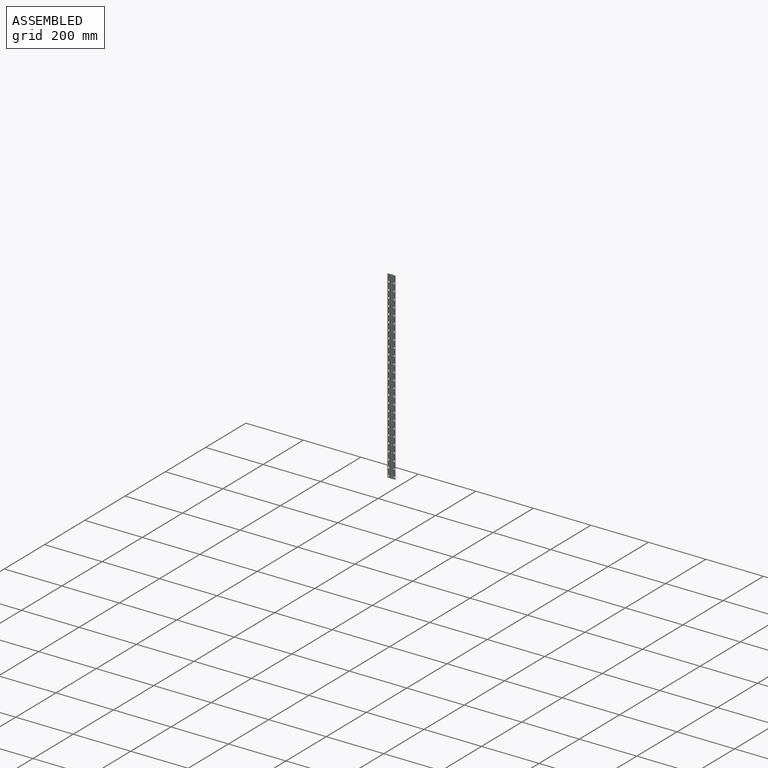
[diagram: assembled view]
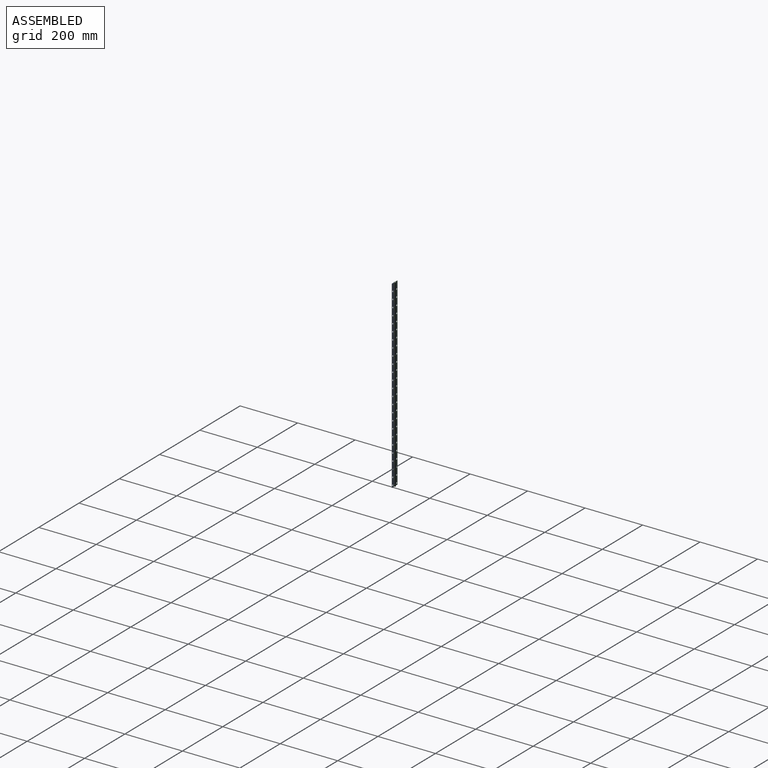
[diagram: assembled view, second angle]
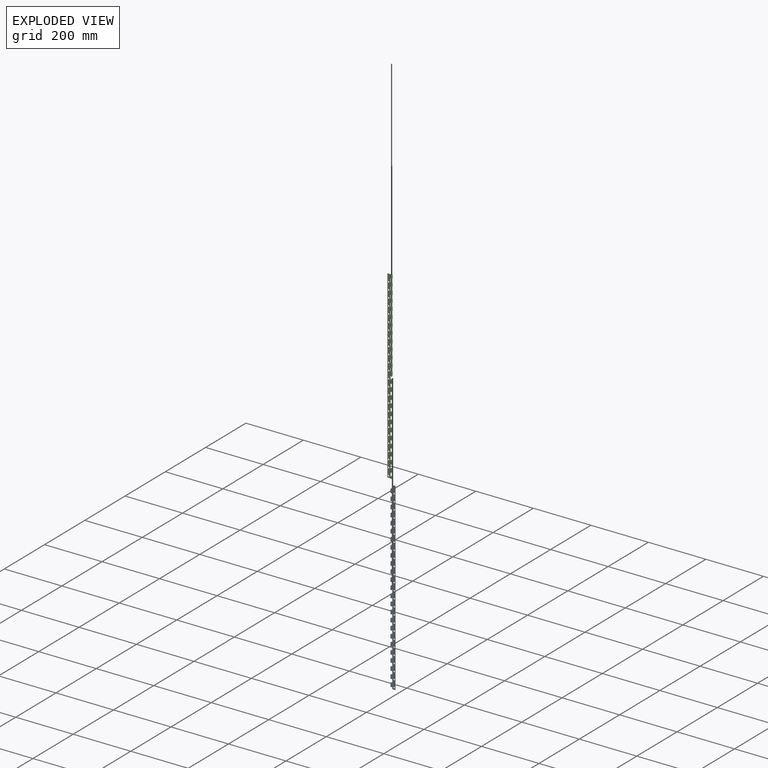
[diagram: exploded view]
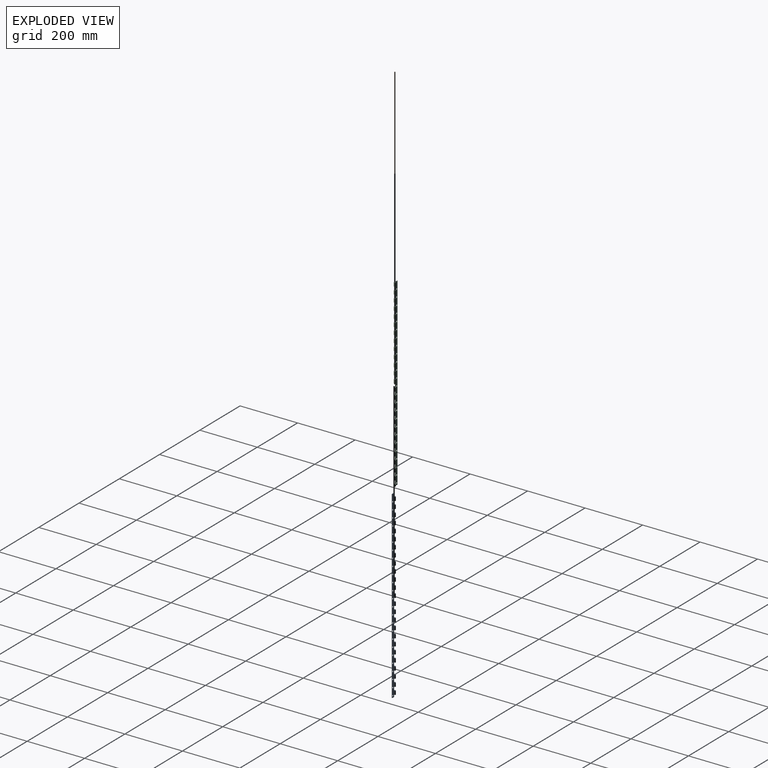
[diagram: exploded view, second angle]
ASSEMBLY  parts=3 mates=2
PART A: 183 faces, bbox 16.6x6.2x641.4 mm
  f0: cylinder r=7.94mm len=641.35mm, axis (0,0,1), area 2093.8mm2, adj f1,f5,f7,f10,f13,f16,f19,f22
  f1: plane 641.35x8.23mm, normal (0,1,0), area 4765.6mm2, adj f0,f2,f81,f157,f158,f159,f160,f161
  f2: plane 641.35x1.52mm, normal (1,0,0), area 977.4mm2, adj f1,f3,f81,f157
  f3: plane 641.35x8.23mm, normal (0,-1,0), area 4765.6mm2, adj f2,f4,f81,f157,f158,f159,f160,f161
  f4: cylinder r=6.41mm len=641.35mm, axis (0,0,1), area 1814.9mm2, adj f3,f5,f6,f9,f12,f15,f18,f21
  f5: plane 6.38x1.58mm, normal (-1,0,0), area 10.1mm2, adj f0,f4,f156,f157
  f6: cylinder r=3.11mm len=12.65mm, axis (0,0,1), area 208.5mm2, adj f4,f8,f153,f156
  f7: cylinder r=1.59mm len=12.65mm, axis (0,0,1), area 106.4mm2, adj f0,f8,f153,f156
  f8: plane 12.65x1.52mm, normal (0,-1,0), area 19.3mm2, adj f6,f7,f153,f156
  f9: cylinder r=3.11mm len=12.65mm, axis (0,0,1), area 208.5mm2, adj f4,f11,f150,f155
  f10: cylinder r=1.59mm len=12.65mm, axis (0,0,1), area 106.4mm2, adj f0,f11,f150,f155
  f11: plane 12.65x1.52mm, normal (0,-1,0), area 19.3mm2, adj f9,f10,f150,f155
  f12: cylinder r=3.11mm len=12.65mm, axis (0,0,1), area 208.5mm2, adj f4,f14,f147,f152
  f13: cylinder r=1.59mm len=12.65mm, axis (0,0,1), area 106.4mm2, adj f0,f14,f147,f152
  f14: plane 12.65x1.52mm, normal (0,-1,0), area 19.3mm2, adj f12,f13,f147,f152
  f15: cylinder r=3.11mm len=12.65mm, axis (0,0,1), area 208.5mm2, adj f4,f17,f144,f149
  f16: cylinder r=1.59mm len=12.65mm, axis (0,0,1), area 106.4mm2, adj f0,f17,f144,f149
  f17: plane 12.65x1.52mm, normal (0,-1,0), area 19.3mm2, adj f15,f16,f144,f149
  f18: cylinder r=3.11mm len=12.65mm, axis (0,0,1), area 208.5mm2, adj f4,f20,f141,f146
  f19: cylinder r=1.59mm len=12.65mm, axis (0,0,1), area 106.4mm2, adj f0,f20,f141,f146
  f20: plane 12.65x1.52mm, normal (0,-1,0), area 19.3mm2, adj f18,f19,f141,f146
  f21: cylinder r=3.11mm len=12.65mm, axis (0,0,1), area 208.5mm2, adj f4,f23,f138,f143
  f22: cylinder r=1.59mm len=12.65mm, axis (0,0,1), area 106.4mm2, adj f0,f23,f138,f143
  f23: plane 12.65x1.52mm, normal (0,-1,0), area 19.3mm2, adj f21,f22,f138,f143
  f24: cylinder r=3.11mm len=12.65mm, axis (0,0,1), area 208.5mm2, adj f4,f26,f135,f140
  f25: cylinder r=1.59mm len=12.65mm, axis (0,0,1), area 106.4mm2, adj f0,f26,f135,f140
  f26: plane 12.65x1.52mm, normal (0,-1,0), area 19.3mm2, adj f24,f25,f135,f140
  f27: cylinder r=3.11mm len=12.65mm, axis (0,0,1), area 208.5mm2, adj f4,f29,f132,f137
  f28: cylinder r=1.59mm len=12.65mm, axis (0,0,1), area 106.4mm2, adj f0,f29,f132,f137
  f29: plane 12.65x1.52mm, normal (0,-1,0), area 19.3mm2, adj f27,f28,f132,f137
  f30: cylinder r=3.11mm len=12.65mm, axis (0,0,1), area 208.5mm2, adj f4,f32,f129,f134
  f31: cylinder r=1.59mm len=12.65mm, axis (0,0,1), area 106.4mm2, adj f0,f32,f129,f134
  f32: plane 12.65x1.52mm, normal (0,-1,0), area 19.3mm2, adj f30,f31,f129,f134
  f33: cylinder r=3.11mm len=12.65mm, axis (0,0,1), area 208.5mm2, adj f4,f35,f126,f131
  f34: cylinder r=1.59mm len=12.65mm, axis (0,0,1), area 106.4mm2, adj f0,f35,f126,f131
  f35: plane 12.65x1.52mm, normal (0,-1,0), area 19.3mm2, adj f33,f34,f126,f131
  f36: cylinder r=3.11mm len=12.65mm, axis (0,0,1), area 208.5mm2, adj f4,f38,f123,f128
  f37: cylinder r=1.59mm len=12.65mm, axis (0,0,1), area 106.4mm2, adj f0,f38,f123,f128
  f38: plane 12.65x1.52mm, normal (0,-1,0), area 19.3mm2, adj f36,f37,f123,f128
  f39: cylinder r=3.11mm len=12.65mm, axis (0,0,1), area 208.5mm2, adj f4,f41,f120,f125
  f40: cylinder r=1.59mm len=12.65mm, axis (0,0,1), area 106.4mm2, adj f0,f41,f120,f125
  f41: plane 12.65x1.52mm, normal (0,-1,0), area 19.3mm2, adj f39,f40,f120,f125
  f42: cylinder r=3.11mm len=12.65mm, axis (0,0,1), area 208.5mm2, adj f4,f44,f117,f122
  f43: cylinder r=1.59mm len=12.65mm, axis (0,0,1), area 106.4mm2, adj f0,f44,f117,f122
  f44: plane 12.65x1.52mm, normal (0,-1,0), area 19.3mm2, adj f42,f43,f117,f122
  f45: cylinder r=3.11mm len=12.65mm, axis (0,0,1), area 208.5mm2, adj f4,f47,f114,f119
  f46: cylinder r=1.59mm len=12.65mm, axis (0,0,1), area 106.4mm2, adj f0,f47,f114,f119
  f47: plane 12.65x1.52mm, normal (0,-1,0), area 19.3mm2, adj f45,f46,f114,f119
  f48: cylinder r=3.11mm len=12.65mm, axis (0,0,1), area 208.5mm2, adj f4,f50,f111,f116
  f49: cylinder r=1.59mm len=12.65mm, axis (0,0,1), area 106.4mm2, adj f0,f50,f111,f116
  f50: plane 12.65x1.52mm, normal (0,-1,0), area 19.3mm2, adj f48,f49,f111,f116
  f51: cylinder r=3.11mm len=12.65mm, axis (0,0,1), area 208.5mm2, adj f4,f53,f108,f113
  f52: cylinder r=1.59mm len=12.65mm, axis (0,0,1), area 106.4mm2, adj f0,f53,f108,f113
  f53: plane 12.65x1.52mm, normal (0,-1,0), area 19.3mm2, adj f51,f52,f108,f113
  f54: cylinder r=3.11mm len=12.65mm, axis (0,0,1), area 208.5mm2, adj f4,f56,f105,f110
  f55: cylinder r=1.59mm len=12.65mm, axis (0,0,1), area 106.4mm2, adj f0,f56,f105,f110
  f56: plane 12.65x1.52mm, normal (0,-1,0), area 19.3mm2, adj f54,f55,f105,f110
  f57: cylinder r=3.11mm len=12.65mm, axis (0,0,1), area 208.5mm2, adj f4,f59,f102,f107
  f58: cylinder r=1.59mm len=12.65mm, axis (0,0,1), area 106.4mm2, adj f0,f59,f102,f107
  f59: plane 12.65x1.52mm, normal (0,-1,0), area 19.3mm2, adj f57,f58,f102,f107
  f60: cylinder r=3.11mm len=12.65mm, axis (0,0,1), area 208.5mm2, adj f4,f62,f99,f104
  f61: cylinder r=1.59mm len=12.65mm, axis (0,0,1), area 106.4mm2, adj f0,f62,f99,f104
  f62: plane 12.65x1.52mm, normal (0,-1,0), area 19.3mm2, adj f60,f61,f99,f104
  f63: cylinder r=3.11mm len=12.65mm, axis (0,0,1), area 208.5mm2, adj f4,f65,f96,f101
  f64: cylinder r=1.59mm len=12.65mm, axis (0,0,1), area 106.4mm2, adj f0,f65,f96,f101
  f65: plane 12.65x1.52mm, normal (0,-1,0), area 19.3mm2, adj f63,f64,f96,f101
  f66: cylinder r=3.11mm len=12.65mm, axis (0,0,1), area 208.5mm2, adj f4,f68,f93,f98
  f67: cylinder r=1.59mm len=12.65mm, axis (0,0,1), area 106.4mm2, adj f0,f68,f93,f98
  f68: plane 12.65x1.52mm, normal (0,-1,0), area 19.3mm2, adj f66,f67,f93,f98
  f69: cylinder r=3.11mm len=12.65mm, axis (0,0,1), area 208.5mm2, adj f4,f71,f90,f95
  f70: cylinder r=1.59mm len=12.65mm, axis (0,0,1), area 106.4mm2, adj f0,f71,f90,f95
  f71: plane 12.65x1.52mm, normal (0,-1,0), area 19.3mm2, adj f69,f70,f90,f95
  f72: cylinder r=3.11mm len=12.65mm, axis (0,0,1), area 208.5mm2, adj f4,f74,f87,f92
  f73: cylinder r=1.59mm len=12.65mm, axis (0,0,1), area 106.4mm2, adj f0,f74,f87,f92
  f74: plane 12.65x1.52mm, normal (0,-1,0), area 19.3mm2, adj f72,f73,f87,f92
  f75: cylinder r=3.11mm len=12.65mm, axis (0,0,1), area 208.5mm2, adj f4,f77,f84,f89
  f76: cylinder r=1.59mm len=12.65mm, axis (0,0,1), area 106.4mm2, adj f0,f77,f84,f89
  f77: plane 12.65x1.52mm, normal (0,-1,0), area 19.3mm2, adj f75,f76,f84,f89
  f78: cylinder r=3.11mm len=12.65mm, axis (0,0,1), area 208.5mm2, adj f4,f80,f82,f86
  f79: cylinder r=1.59mm len=12.65mm, axis (0,0,1), area 106.4mm2, adj f0,f80,f82,f86
  f80: plane 12.65x1.52mm, normal (0,-1,0), area 19.3mm2, adj f78,f79,f82,f86
  f81: plane 10.13x1.81mm, normal (0,0,1), area 15.5mm2, adj f0,f1,f2,f3,f4,f83
  f82: plane 6.48x6.22mm, normal (0,0,1), area 22.4mm2, adj f0,f4,f78,f79,f80,f83
  f83: plane 12.73x1.58mm, normal (-1,0,0), area 20.1mm2, adj f0,f4,f81,f82
  f84: plane 6.48x6.22mm, normal (0,0,1), area 22.4mm2, adj f0,f4,f75,f76,f77,f85
  f85: plane 12.75x1.58mm, normal (-1,0,0), area 20.2mm2, adj f0,f4,f84,f86
  f86: plane 6.48x6.22mm, normal (0,0,-1), area 22.4mm2, adj f0,f4,f78,f79,f80,f85
  f87: plane 6.48x6.22mm, normal (0,0,1), area 22.4mm2, adj f0,f4,f72,f73,f74,f88
  f88: plane 12.75x1.58mm, normal (-1,0,0), area 20.2mm2, adj f0,f4,f87,f89
  f89: plane 6.48x6.22mm, normal (0,0,-1), area 22.4mm2, adj f0,f4,f75,f76,f77,f88
  f90: plane 6.48x6.22mm, normal (0,0,1), area 22.4mm2, adj f0,f4,f69,f70,f71,f91
  f91: plane 12.75x1.58mm, normal (-1,0,0), area 20.2mm2, adj f0,f4,f90,f92
  f92: plane 6.48x6.22mm, normal (0,0,-1), area 22.4mm2, adj f0,f4,f72,f73,f74,f91
  f93: plane 6.48x6.22mm, normal (0,0,1), area 22.4mm2, adj f0,f4,f66,f67,f68,f94
  f94: plane 12.75x1.58mm, normal (-1,0,0), area 20.2mm2, adj f0,f4,f93,f95
  f95: plane 6.48x6.22mm, normal (0,0,-1), area 22.4mm2, adj f0,f4,f69,f70,f71,f94
  f96: plane 6.48x6.22mm, normal (0,0,1), area 22.4mm2, adj f0,f4,f63,f64,f65,f97
  f97: plane 12.75x1.58mm, normal (-1,0,0), area 20.2mm2, adj f0,f4,f96,f98
  f98: plane 6.48x6.22mm, normal (0,0,-1), area 22.4mm2, adj f0,f4,f66,f67,f68,f97
  f99: plane 6.48x6.22mm, normal (0,0,1), area 22.4mm2, adj f0,f4,f60,f61,f62,f100
  f100: plane 12.75x1.58mm, normal (-1,0,0), area 20.2mm2, adj f0,f4,f99,f101
  f101: plane 6.48x6.22mm, normal (0,0,-1), area 22.4mm2, adj f0,f4,f63,f64,f65,f100
  f102: plane 6.48x6.22mm, normal (0,0,1), area 22.4mm2, adj f0,f4,f57,f58,f59,f103
  f103: plane 12.75x1.58mm, normal (-1,0,0), area 20.2mm2, adj f0,f4,f102,f104
  f104: plane 6.48x6.22mm, normal (0,0,-1), area 22.4mm2, adj f0,f4,f60,f61,f62,f103
  f105: plane 6.48x6.22mm, normal (0,0,1), area 22.4mm2, adj f0,f4,f54,f55,f56,f106
  f106: plane 12.75x1.58mm, normal (-1,0,0), area 20.2mm2, adj f0,f4,f105,f107
  f107: plane 6.48x6.22mm, normal (0,0,-1), area 22.4mm2, adj f0,f4,f57,f58,f59,f106
  f108: plane 6.48x6.22mm, normal (0,0,1), area 22.4mm2, adj f0,f4,f51,f52,f53,f109
  f109: plane 12.75x1.58mm, normal (-1,0,0), area 20.2mm2, adj f0,f4,f108,f110
  f110: plane 6.48x6.22mm, normal (0,0,-1), area 22.4mm2, adj f0,f4,f54,f55,f56,f109
  f111: plane 6.48x6.22mm, normal (0,0,1), area 22.4mm2, adj f0,f4,f48,f49,f50,f112
  f112: plane 12.75x1.58mm, normal (-1,0,0), area 20.2mm2, adj f0,f4,f111,f113
  f113: plane 6.48x6.22mm, normal (0,0,-1), area 22.4mm2, adj f0,f4,f51,f52,f53,f112
  f114: plane 6.48x6.22mm, normal (0,0,1), area 22.4mm2, adj f0,f4,f45,f46,f47,f115
  f115: plane 12.75x1.58mm, normal (-1,0,0), area 20.2mm2, adj f0,f4,f114,f116
  f116: plane 6.48x6.22mm, normal (0,0,-1), area 22.4mm2, adj f0,f4,f48,f49,f50,f115
  f117: plane 6.48x6.22mm, normal (0,0,1), area 22.4mm2, adj f0,f4,f42,f43,f44,f118
  f118: plane 12.75x1.58mm, normal (-1,0,0), area 20.2mm2, adj f0,f4,f117,f119
  f119: plane 6.48x6.22mm, normal (0,0,-1), area 22.4mm2, adj f0,f4,f45,f46,f47,f118
  f120: plane 6.48x6.22mm, normal (0,0,1), area 22.4mm2, adj f0,f4,f39,f40,f41,f121
  f121: plane 12.75x1.58mm, normal (-1,0,0), area 20.2mm2, adj f0,f4,f120,f122
  f122: plane 6.48x6.22mm, normal (0,0,-1), area 22.4mm2, adj f0,f4,f42,f43,f44,f121
  f123: plane 6.48x6.22mm, normal (0,0,1), area 22.4mm2, adj f0,f4,f36,f37,f38,f124
  f124: plane 12.75x1.58mm, normal (-1,0,0), area 20.2mm2, adj f0,f4,f123,f125
  f125: plane 6.48x6.22mm, normal (0,0,-1), area 22.4mm2, adj f0,f4,f39,f40,f41,f124
  f126: plane 6.48x6.22mm, normal (0,0,1), area 22.4mm2, adj f0,f4,f33,f34,f35,f127
  f127: plane 12.75x1.58mm, normal (-1,0,0), area 20.2mm2, adj f0,f4,f126,f128
  f128: plane 6.48x6.22mm, normal (0,0,-1), area 22.4mm2, adj f0,f4,f36,f37,f38,f127
  f129: plane 6.48x6.22mm, normal (0,0,1), area 22.4mm2, adj f0,f4,f30,f31,f32,f130
  f130: plane 12.75x1.58mm, normal (-1,0,0), area 20.2mm2, adj f0,f4,f129,f131
  f131: plane 6.48x6.22mm, normal (0,0,-1), area 22.4mm2, adj f0,f4,f33,f34,f35,f130
  f132: plane 6.48x6.22mm, normal (0,0,1), area 22.4mm2, adj f0,f4,f27,f28,f29,f133
  f133: plane 12.75x1.58mm, normal (-1,0,0), area 20.2mm2, adj f0,f4,f132,f134
  f134: plane 6.48x6.22mm, normal (0,0,-1), area 22.4mm2, adj f0,f4,f30,f31,f32,f133
  f135: plane 6.48x6.22mm, normal (0,0,1), area 22.4mm2, adj f0,f4,f24,f25,f26,f136
  f136: plane 12.75x1.58mm, normal (-1,0,0), area 20.2mm2, adj f0,f4,f135,f137
  f137: plane 6.48x6.22mm, normal (0,0,-1), area 22.4mm2, adj f0,f4,f27,f28,f29,f136
  f138: plane 6.48x6.22mm, normal (0,0,1), area 22.4mm2, adj f0,f4,f21,f22,f23,f139
  f139: plane 12.75x1.58mm, normal (-1,0,0), area 20.2mm2, adj f0,f4,f138,f140
  f140: plane 6.48x6.22mm, normal (0,0,-1), area 22.4mm2, adj f0,f4,f24,f25,f26,f139
  f141: plane 6.48x6.22mm, normal (0,0,1), area 22.4mm2, adj f0,f4,f18,f19,f20,f142
  f142: plane 12.75x1.58mm, normal (-1,0,0), area 20.2mm2, adj f0,f4,f141,f143
  f143: plane 6.48x6.22mm, normal (0,0,-1), area 22.4mm2, adj f0,f4,f21,f22,f23,f142
  f144: plane 6.48x6.22mm, normal (0,0,1), area 22.4mm2, adj f0,f4,f15,f16,f17,f145
  f145: plane 12.75x1.58mm, normal (-1,0,0), area 20.2mm2, adj f0,f4,f144,f146
  f146: plane 6.48x6.22mm, normal (0,0,-1), area 22.4mm2, adj f0,f4,f18,f19,f20,f145
  f147: plane 6.48x6.22mm, normal (0,0,1), area 22.4mm2, adj f0,f4,f12,f13,f14,f148
  f148: plane 12.75x1.58mm, normal (-1,0,0), area 20.2mm2, adj f0,f4,f147,f149
  f149: plane 6.48x6.22mm, normal (0,0,-1), area 22.4mm2, adj f0,f4,f15,f16,f17,f148
  f150: plane 6.48x6.22mm, normal (0,0,1), area 22.4mm2, adj f0,f4,f9,f10,f11,f151
  f151: plane 12.75x1.58mm, normal (-1,0,0), area 20.2mm2, adj f0,f4,f150,f152
  f152: plane 6.48x6.22mm, normal (0,0,-1), area 22.4mm2, adj f0,f4,f12,f13,f14,f151
  f153: plane 6.48x6.22mm, normal (0,0,1), area 22.4mm2, adj f0,f4,f6,f7,f8,f154
  f154: plane 12.75x1.58mm, normal (-1,0,0), area 20.2mm2, adj f0,f4,f153,f155
  f155: plane 6.48x6.22mm, normal (0,0,-1), area 22.4mm2, adj f0,f4,f9,f10,f11,f154
  f156: plane 6.48x6.22mm, normal (0,0,-1), area 22.4mm2, adj f0,f4,f5,f6,f7,f8
  f157: plane 10.13x1.81mm, normal (0,0,-1), area 15.5mm2, adj f0,f1,f2,f3,f4,f5
  f158: cylinder r=2.55mm len=5.11mm, axis (0,-1,0), area 24.4mm2, adj f1,f3
  f159: cylinder r=2.55mm len=5.11mm, axis (0,-1,0), area 24.4mm2, adj f1,f3
  f160: cylinder r=2.55mm len=5.11mm, axis (0,-1,0), area 24.4mm2, adj f1,f3
  f161: cylinder r=2.55mm len=5.11mm, axis (0,-1,0), area 24.4mm2, adj f1,f3
  f162: cylinder r=2.55mm len=5.11mm, axis (0,-1,0), area 24.4mm2, adj f1,f3
  f163: cylinder r=2.55mm len=5.11mm, axis (0,-1,0), area 24.4mm2, adj f1,f3
  f164: cylinder r=2.55mm len=5.11mm, axis (0,-1,0), area 24.4mm2, adj f1,f3
  f165: cylinder r=2.55mm len=5.11mm, axis (0,-1,0), area 24.4mm2, adj f1,f3
  f166: cylinder r=2.55mm len=5.11mm, axis (0,-1,0), area 24.4mm2, adj f1,f3
  f167: cylinder r=2.55mm len=5.11mm, axis (0,-1,0), area 24.4mm2, adj f1,f3
  f168: cylinder r=2.55mm len=5.11mm, axis (0,-1,0), area 24.4mm2, adj f1,f3
  f169: cylinder r=2.55mm len=5.11mm, axis (0,-1,0), area 24.4mm2, adj f1,f3
  f170: cylinder r=2.55mm len=5.11mm, axis (0,-1,0), area 24.4mm2, adj f1,f3
  f171: cylinder r=2.55mm len=5.11mm, axis (0,-1,0), area 24.4mm2, adj f1,f3
  f172: cylinder r=2.55mm len=5.11mm, axis (0,-1,0), area 24.4mm2, adj f1,f3
  f173: cylinder r=2.55mm len=5.11mm, axis (0,-1,0), area 24.4mm2, adj f1,f3
  f174: cylinder r=2.55mm len=5.11mm, axis (0,-1,0), area 24.4mm2, adj f1,f3
  f175: cylinder r=2.55mm len=5.11mm, axis (0,-1,0), area 24.4mm2, adj f1,f3
  f176: cylinder r=2.55mm len=5.11mm, axis (0,-1,0), area 24.4mm2, adj f1,f3
  f177: cylinder r=2.55mm len=5.11mm, axis (0,-1,0), area 24.4mm2, adj f1,f3
  f178: cylinder r=2.55mm len=5.11mm, axis (0,-1,0), area 24.4mm2, adj f1,f3
  f179: cylinder r=2.55mm len=5.11mm, axis (0,-1,0), area 24.4mm2, adj f1,f3
  f180: cylinder r=2.55mm len=5.11mm, axis (0,-1,0), area 24.4mm2, adj f1,f3
  f181: cylinder r=2.55mm len=5.11mm, axis (0,-1,0), area 24.4mm2, adj f1,f3
  f182: cylinder r=2.55mm len=5.11mm, axis (0,-1,0), area 24.4mm2, adj f1,f3
PART B: 3 faces, bbox 3.1x3.1x641.4 mm
  f0: cylinder r=1.54mm len=641.35mm, axis (0,0,1), area 6192.5mm2, adj f1,f2
  f1: plane 3.07x3.07mm, normal (0,0,1), area 7.4mm2, adj f0
  f2: plane 3.07x3.07mm, normal (0,0,-1), area 7.4mm2, adj f0
PART C: 185 faces, bbox 16.6x6.2x641.4 mm
  f0: cylinder r=3.11mm len=6.32mm, axis (0,0,1), area 104.3mm2, adj f2,f3,f158,f159
  f1: cylinder r=1.59mm len=6.32mm, axis (0,0,1), area 53.2mm2, adj f2,f7,f158,f159
  f2: plane 6.32x1.52mm, normal (0,-1,0), area 9.6mm2, adj f0,f1,f158,f159
  f3: cylinder r=6.41mm len=641.35mm, axis (0,0,1), area 1826.5mm2, adj f0,f4,f8,f10,f12,f14,f16,f18
  f4: plane 641.35x8.23mm, normal (0,-1,0), area 4765.6mm2, adj f3,f5,f83,f159,f160,f161,f162,f163
  f5: plane 641.35x1.52mm, normal (-1,0,0), area 977.4mm2, adj f4,f6,f83,f159
  f6: plane 641.35x8.23mm, normal (0,1,0), area 4765.6mm2, adj f5,f7,f83,f159,f160,f161,f162,f163
  f7: cylinder r=7.94mm len=641.35mm, axis (0,0,1), area 2111.1mm2, adj f1,f6,f9,f11,f13,f15,f17,f19
  f8: cylinder r=3.11mm len=12.67mm, axis (0,0,1), area 208.9mm2, adj f3,f82,f83,f84
  f9: cylinder r=1.59mm len=12.67mm, axis (0,0,1), area 106.6mm2, adj f7,f82,f83,f84
  f10: cylinder r=3.11mm len=12.65mm, axis (0,0,1), area 208.5mm2, adj f3,f81,f86,f87
  f11: cylinder r=1.59mm len=12.65mm, axis (0,0,1), area 106.4mm2, adj f7,f81,f86,f87
  f12: cylinder r=3.11mm len=12.65mm, axis (0,0,1), area 208.5mm2, adj f3,f80,f89,f90
  f13: cylinder r=1.59mm len=12.65mm, axis (0,0,1), area 106.4mm2, adj f7,f80,f89,f90
  f14: cylinder r=3.11mm len=12.65mm, axis (0,0,1), area 208.5mm2, adj f3,f79,f92,f93
  f15: cylinder r=1.59mm len=12.65mm, axis (0,0,1), area 106.4mm2, adj f7,f79,f92,f93
  f16: cylinder r=3.11mm len=12.65mm, axis (0,0,1), area 208.5mm2, adj f3,f78,f95,f96
  f17: cylinder r=1.59mm len=12.65mm, axis (0,0,1), area 106.4mm2, adj f7,f78,f95,f96
  f18: cylinder r=3.11mm len=12.65mm, axis (0,0,1), area 208.5mm2, adj f3,f77,f98,f99
  f19: cylinder r=1.59mm len=12.65mm, axis (0,0,1), area 106.4mm2, adj f7,f77,f98,f99
  f20: cylinder r=3.11mm len=12.65mm, axis (0,0,1), area 208.5mm2, adj f3,f76,f101,f102
  f21: cylinder r=1.59mm len=12.65mm, axis (0,0,1), area 106.4mm2, adj f7,f76,f101,f102
  f22: cylinder r=3.11mm len=12.65mm, axis (0,0,1), area 208.5mm2, adj f3,f75,f104,f105
  f23: cylinder r=1.59mm len=12.65mm, axis (0,0,1), area 106.4mm2, adj f7,f75,f104,f105
  f24: cylinder r=3.11mm len=12.65mm, axis (0,0,1), area 208.5mm2, adj f3,f74,f107,f108
  f25: cylinder r=1.59mm len=12.65mm, axis (0,0,1), area 106.4mm2, adj f7,f74,f107,f108
  f26: cylinder r=3.11mm len=12.65mm, axis (0,0,1), area 208.5mm2, adj f3,f73,f110,f111
  f27: cylinder r=1.59mm len=12.65mm, axis (0,0,1), area 106.4mm2, adj f7,f73,f110,f111
  f28: cylinder r=3.11mm len=12.65mm, axis (0,0,1), area 208.5mm2, adj f3,f72,f113,f114
  f29: cylinder r=1.59mm len=12.65mm, axis (0,0,1), area 106.4mm2, adj f7,f72,f113,f114
  f30: cylinder r=3.11mm len=12.65mm, axis (0,0,1), area 208.5mm2, adj f3,f71,f116,f117
  f31: cylinder r=1.59mm len=12.65mm, axis (0,0,1), area 106.4mm2, adj f7,f71,f116,f117
  f32: cylinder r=3.11mm len=12.65mm, axis (0,0,1), area 208.5mm2, adj f3,f70,f119,f120
  f33: cylinder r=1.59mm len=12.65mm, axis (0,0,1), area 106.4mm2, adj f7,f70,f119,f120
  f34: cylinder r=3.11mm len=12.65mm, axis (0,0,1), area 208.5mm2, adj f3,f69,f122,f123
  f35: cylinder r=1.59mm len=12.65mm, axis (0,0,1), area 106.4mm2, adj f7,f69,f122,f123
  f36: cylinder r=3.11mm len=12.65mm, axis (0,0,1), area 208.5mm2, adj f3,f68,f125,f126
  f37: cylinder r=1.59mm len=12.65mm, axis (0,0,1), area 106.4mm2, adj f7,f68,f125,f126
  f38: cylinder r=3.11mm len=12.65mm, axis (0,0,1), area 208.5mm2, adj f3,f67,f128,f129
  f39: cylinder r=1.59mm len=12.65mm, axis (0,0,1), area 106.4mm2, adj f7,f67,f128,f129
  f40: cylinder r=3.11mm len=12.65mm, axis (0,0,1), area 208.5mm2, adj f3,f66,f131,f132
  f41: cylinder r=1.59mm len=12.65mm, axis (0,0,1), area 106.4mm2, adj f7,f66,f131,f132
  f42: cylinder r=3.11mm len=12.65mm, axis (0,0,1), area 208.5mm2, adj f3,f65,f134,f135
  f43: cylinder r=1.59mm len=12.65mm, axis (0,0,1), area 106.4mm2, adj f7,f65,f134,f135
  f44: cylinder r=3.11mm len=12.65mm, axis (0,0,1), area 208.5mm2, adj f3,f64,f137,f138
  f45: cylinder r=1.59mm len=12.65mm, axis (0,0,1), area 106.4mm2, adj f7,f64,f137,f138
  f46: cylinder r=3.11mm len=12.65mm, axis (0,0,1), area 208.5mm2, adj f3,f63,f140,f141
  f47: cylinder r=1.59mm len=12.65mm, axis (0,0,1), area 106.4mm2, adj f7,f63,f140,f141
  f48: cylinder r=3.11mm len=12.65mm, axis (0,0,1), area 208.5mm2, adj f3,f62,f143,f144
  f49: cylinder r=1.59mm len=12.65mm, axis (0,0,1), area 106.4mm2, adj f7,f62,f143,f144
  f50: cylinder r=3.11mm len=12.65mm, axis (0,0,1), area 208.5mm2, adj f3,f61,f146,f147
  f51: cylinder r=1.59mm len=12.65mm, axis (0,0,1), area 106.4mm2, adj f7,f61,f146,f147
  f52: cylinder r=3.11mm len=12.65mm, axis (0,0,1), area 208.5mm2, adj f3,f60,f149,f150
  f53: cylinder r=1.59mm len=12.65mm, axis (0,0,1), area 106.4mm2, adj f7,f60,f149,f150
  f54: cylinder r=3.11mm len=12.65mm, axis (0,0,1), area 208.5mm2, adj f3,f59,f152,f153
  f55: cylinder r=1.59mm len=12.65mm, axis (0,0,1), area 106.4mm2, adj f7,f59,f152,f153
  f56: cylinder r=3.11mm len=12.65mm, axis (0,0,1), area 208.5mm2, adj f3,f58,f155,f156
  f57: cylinder r=1.59mm len=12.65mm, axis (0,0,1), area 106.4mm2, adj f7,f58,f155,f156
  f58: plane 12.65x1.52mm, normal (0,-1,0), area 19.3mm2, adj f56,f57,f155,f156
  f59: plane 12.65x1.52mm, normal (0,-1,0), area 19.3mm2, adj f54,f55,f152,f153
  f60: plane 12.65x1.52mm, normal (0,-1,0), area 19.3mm2, adj f52,f53,f149,f150
  f61: plane 12.65x1.52mm, normal (0,-1,0), area 19.3mm2, adj f50,f51,f146,f147
  f62: plane 12.65x1.52mm, normal (0,-1,0), area 19.3mm2, adj f48,f49,f143,f144
  f63: plane 12.65x1.52mm, normal (0,-1,0), area 19.3mm2, adj f46,f47,f140,f141
  f64: plane 12.65x1.52mm, normal (0,-1,0), area 19.3mm2, adj f44,f45,f137,f138
  f65: plane 12.65x1.52mm, normal (0,-1,0), area 19.3mm2, adj f42,f43,f134,f135
  f66: plane 12.65x1.52mm, normal (0,-1,0), area 19.3mm2, adj f40,f41,f131,f132
  f67: plane 12.65x1.52mm, normal (0,-1,0), area 19.3mm2, adj f38,f39,f128,f129
  f68: plane 12.65x1.52mm, normal (0,-1,0), area 19.3mm2, adj f36,f37,f125,f126
  f69: plane 12.65x1.52mm, normal (0,-1,0), area 19.3mm2, adj f34,f35,f122,f123
  f70: plane 12.65x1.52mm, normal (0,-1,0), area 19.3mm2, adj f32,f33,f119,f120
  f71: plane 12.65x1.52mm, normal (0,-1,0), area 19.3mm2, adj f30,f31,f116,f117
  f72: plane 12.65x1.52mm, normal (0,-1,0), area 19.3mm2, adj f28,f29,f113,f114
  f73: plane 12.65x1.52mm, normal (0,-1,0), area 19.3mm2, adj f26,f27,f110,f111
  f74: plane 12.65x1.52mm, normal (0,-1,0), area 19.3mm2, adj f24,f25,f107,f108
  f75: plane 12.65x1.52mm, normal (0,-1,0), area 19.3mm2, adj f22,f23,f104,f105
  f76: plane 12.65x1.52mm, normal (0,-1,0), area 19.3mm2, adj f20,f21,f101,f102
  f77: plane 12.65x1.52mm, normal (0,-1,0), area 19.3mm2, adj f18,f19,f98,f99
  f78: plane 12.65x1.52mm, normal (0,-1,0), area 19.3mm2, adj f16,f17,f95,f96
  f79: plane 12.65x1.52mm, normal (0,-1,0), area 19.3mm2, adj f14,f15,f92,f93
  f80: plane 12.65x1.52mm, normal (0,-1,0), area 19.3mm2, adj f12,f13,f89,f90
  f81: plane 12.65x1.52mm, normal (0,-1,0), area 19.3mm2, adj f10,f11,f86,f87
  f82: plane 12.67x1.52mm, normal (0,-1,0), area 19.3mm2, adj f8,f9,f83,f84
  f83: plane 16.61x6.22mm, normal (0,0,1), area 37.9mm2, adj f3,f4,f5,f6,f7,f8,f9,f82
  f84: plane 6.48x6.22mm, normal (0,0,-1), area 22.4mm2, adj f3,f7,f8,f9,f82,f85
  f85: plane 12.75x1.58mm, normal (1,0,0), area 20.2mm2, adj f3,f7,f84,f86
  f86: plane 6.48x6.22mm, normal (0,0,1), area 22.4mm2, adj f3,f7,f10,f11,f81,f85
  f87: plane 6.48x6.22mm, normal (0,0,-1), area 22.4mm2, adj f3,f7,f10,f11,f81,f88
  f88: plane 12.75x1.58mm, normal (1,0,0), area 20.2mm2, adj f3,f7,f87,f89
  f89: plane 6.48x6.22mm, normal (0,0,1), area 22.4mm2, adj f3,f7,f12,f13,f80,f88
  f90: plane 6.48x6.22mm, normal (0,0,-1), area 22.4mm2, adj f3,f7,f12,f13,f80,f91
  f91: plane 12.75x1.58mm, normal (1,0,0), area 20.2mm2, adj f3,f7,f90,f92
  f92: plane 6.48x6.22mm, normal (0,0,1), area 22.4mm2, adj f3,f7,f14,f15,f79,f91
  f93: plane 6.48x6.22mm, normal (0,0,-1), area 22.4mm2, adj f3,f7,f14,f15,f79,f94
  f94: plane 12.75x1.58mm, normal (1,0,0), area 20.2mm2, adj f3,f7,f93,f95
  f95: plane 6.48x6.22mm, normal (0,0,1), area 22.4mm2, adj f3,f7,f16,f17,f78,f94
  f96: plane 6.48x6.22mm, normal (0,0,-1), area 22.4mm2, adj f3,f7,f16,f17,f78,f97
  f97: plane 12.75x1.58mm, normal (1,0,0), area 20.2mm2, adj f3,f7,f96,f98
  f98: plane 6.48x6.22mm, normal (0,0,1), area 22.4mm2, adj f3,f7,f18,f19,f77,f97
  f99: plane 6.48x6.22mm, normal (0,0,-1), area 22.4mm2, adj f3,f7,f18,f19,f77,f100
  f100: plane 12.75x1.58mm, normal (1,0,0), area 20.2mm2, adj f3,f7,f99,f101
  f101: plane 6.48x6.22mm, normal (0,0,1), area 22.4mm2, adj f3,f7,f20,f21,f76,f100
  f102: plane 6.48x6.22mm, normal (0,0,-1), area 22.4mm2, adj f3,f7,f20,f21,f76,f103
  f103: plane 12.75x1.58mm, normal (1,0,0), area 20.2mm2, adj f3,f7,f102,f104
  f104: plane 6.48x6.22mm, normal (0,0,1), area 22.4mm2, adj f3,f7,f22,f23,f75,f103
  f105: plane 6.48x6.22mm, normal (0,0,-1), area 22.4mm2, adj f3,f7,f22,f23,f75,f106
  f106: plane 12.75x1.58mm, normal (1,0,0), area 20.2mm2, adj f3,f7,f105,f107
  f107: plane 6.48x6.22mm, normal (0,0,1), area 22.4mm2, adj f3,f7,f24,f25,f74,f106
  f108: plane 6.48x6.22mm, normal (0,0,-1), area 22.4mm2, adj f3,f7,f24,f25,f74,f109
  f109: plane 12.75x1.58mm, normal (1,0,0), area 20.2mm2, adj f3,f7,f108,f110
  f110: plane 6.48x6.22mm, normal (0,0,1), area 22.4mm2, adj f3,f7,f26,f27,f73,f109
  f111: plane 6.48x6.22mm, normal (0,0,-1), area 22.4mm2, adj f3,f7,f26,f27,f73,f112
  f112: plane 12.75x1.58mm, normal (1,0,0), area 20.2mm2, adj f3,f7,f111,f113
  f113: plane 6.48x6.22mm, normal (0,0,1), area 22.4mm2, adj f3,f7,f28,f29,f72,f112
  f114: plane 6.48x6.22mm, normal (0,0,-1), area 22.4mm2, adj f3,f7,f28,f29,f72,f115
  f115: plane 12.75x1.58mm, normal (1,0,0), area 20.2mm2, adj f3,f7,f114,f116
  f116: plane 6.48x6.22mm, normal (0,0,1), area 22.4mm2, adj f3,f7,f30,f31,f71,f115
  f117: plane 6.48x6.22mm, normal (0,0,-1), area 22.4mm2, adj f3,f7,f30,f31,f71,f118
  f118: plane 12.75x1.58mm, normal (1,0,0), area 20.2mm2, adj f3,f7,f117,f119
  f119: plane 6.48x6.22mm, normal (0,0,1), area 22.4mm2, adj f3,f7,f32,f33,f70,f118
  f120: plane 6.48x6.22mm, normal (0,0,-1), area 22.4mm2, adj f3,f7,f32,f33,f70,f121
  f121: plane 12.75x1.58mm, normal (1,0,0), area 20.2mm2, adj f3,f7,f120,f122
  f122: plane 6.48x6.22mm, normal (0,0,1), area 22.4mm2, adj f3,f7,f34,f35,f69,f121
  f123: plane 6.48x6.22mm, normal (0,0,-1), area 22.4mm2, adj f3,f7,f34,f35,f69,f124
  f124: plane 12.75x1.58mm, normal (1,0,0), area 20.2mm2, adj f3,f7,f123,f125
  f125: plane 6.48x6.22mm, normal (0,0,1), area 22.4mm2, adj f3,f7,f36,f37,f68,f124
  f126: plane 6.48x6.22mm, normal (0,0,-1), area 22.4mm2, adj f3,f7,f36,f37,f68,f127
  f127: plane 12.75x1.58mm, normal (1,0,0), area 20.2mm2, adj f3,f7,f126,f128
  f128: plane 6.48x6.22mm, normal (0,0,1), area 22.4mm2, adj f3,f7,f38,f39,f67,f127
  f129: plane 6.48x6.22mm, normal (0,0,-1), area 22.4mm2, adj f3,f7,f38,f39,f67,f130
  f130: plane 12.75x1.58mm, normal (1,0,0), area 20.2mm2, adj f3,f7,f129,f131
  f131: plane 6.48x6.22mm, normal (0,0,1), area 22.4mm2, adj f3,f7,f40,f41,f66,f130
  f132: plane 6.48x6.22mm, normal (0,0,-1), area 22.4mm2, adj f3,f7,f40,f41,f66,f133
  f133: plane 12.75x1.58mm, normal (1,0,0), area 20.2mm2, adj f3,f7,f132,f134
  f134: plane 6.48x6.22mm, normal (0,0,1), area 22.4mm2, adj f3,f7,f42,f43,f65,f133
  f135: plane 6.48x6.22mm, normal (0,0,-1), area 22.4mm2, adj f3,f7,f42,f43,f65,f136
  f136: plane 12.75x1.58mm, normal (1,0,0), area 20.2mm2, adj f3,f7,f135,f137
  f137: plane 6.48x6.22mm, normal (0,0,1), area 22.4mm2, adj f3,f7,f44,f45,f64,f136
  f138: plane 6.48x6.22mm, normal (0,0,-1), area 22.4mm2, adj f3,f7,f44,f45,f64,f139
  f139: plane 12.75x1.58mm, normal (1,0,0), area 20.2mm2, adj f3,f7,f138,f140
  f140: plane 6.48x6.22mm, normal (0,0,1), area 22.4mm2, adj f3,f7,f46,f47,f63,f139
  f141: plane 6.48x6.22mm, normal (0,0,-1), area 22.4mm2, adj f3,f7,f46,f47,f63,f142
  f142: plane 12.75x1.58mm, normal (1,0,0), area 20.2mm2, adj f3,f7,f141,f143
  f143: plane 6.48x6.22mm, normal (0,0,1), area 22.4mm2, adj f3,f7,f48,f49,f62,f142
  f144: plane 6.48x6.22mm, normal (0,0,-1), area 22.4mm2, adj f3,f7,f48,f49,f62,f145
  f145: plane 12.75x1.58mm, normal (1,0,0), area 20.2mm2, adj f3,f7,f144,f146
  f146: plane 6.48x6.22mm, normal (0,0,1), area 22.4mm2, adj f3,f7,f50,f51,f61,f145
  f147: plane 6.48x6.22mm, normal (0,0,-1), area 22.4mm2, adj f3,f7,f50,f51,f61,f148
  f148: plane 12.75x1.58mm, normal (1,0,0), area 20.2mm2, adj f3,f7,f147,f149
  f149: plane 6.48x6.22mm, normal (0,0,1), area 22.4mm2, adj f3,f7,f52,f53,f60,f148
  f150: plane 6.48x6.22mm, normal (0,0,-1), area 22.4mm2, adj f3,f7,f52,f53,f60,f151
  f151: plane 12.75x1.58mm, normal (1,0,0), area 20.2mm2, adj f3,f7,f150,f152
  f152: plane 6.48x6.22mm, normal (0,0,1), area 22.4mm2, adj f3,f7,f54,f55,f59,f151
  f153: plane 6.48x6.22mm, normal (0,0,-1), area 22.4mm2, adj f3,f7,f54,f55,f59,f154
  f154: plane 12.75x1.58mm, normal (1,0,0), area 20.2mm2, adj f3,f7,f153,f155
  f155: plane 6.48x6.22mm, normal (0,0,1), area 22.4mm2, adj f3,f7,f56,f57,f58,f154
  f156: plane 6.48x6.22mm, normal (0,0,-1), area 22.4mm2, adj f3,f7,f56,f57,f58,f157
  f157: plane 12.75x1.58mm, normal (1,0,0), area 20.2mm2, adj f3,f7,f156,f158
  f158: plane 6.48x6.22mm, normal (0,0,1), area 22.4mm2, adj f0,f1,f2,f3,f7,f157
  f159: plane 16.61x6.22mm, normal (0,0,-1), area 37.9mm2, adj f0,f1,f2,f3,f4,f5,f6,f7
  f160: cylinder r=2.55mm len=5.11mm, axis (0,-1,0), area 24.4mm2, adj f4,f6
  f161: cylinder r=2.55mm len=5.11mm, axis (0,-1,0), area 24.4mm2, adj f4,f6
  f162: cylinder r=2.55mm len=5.11mm, axis (0,-1,0), area 24.4mm2, adj f4,f6
  f163: cylinder r=2.55mm len=5.11mm, axis (0,-1,0), area 24.4mm2, adj f4,f6
  f164: cylinder r=2.55mm len=5.11mm, axis (0,-1,0), area 24.4mm2, adj f4,f6
  f165: cylinder r=2.55mm len=5.11mm, axis (0,-1,0), area 24.4mm2, adj f4,f6
  f166: cylinder r=2.55mm len=5.11mm, axis (0,-1,0), area 24.4mm2, adj f4,f6
  f167: cylinder r=2.55mm len=5.11mm, axis (0,-1,0), area 24.4mm2, adj f4,f6
  f168: cylinder r=2.55mm len=5.11mm, axis (0,-1,0), area 24.4mm2, adj f4,f6
  f169: cylinder r=2.55mm len=5.11mm, axis (0,-1,0), area 24.4mm2, adj f4,f6
  f170: cylinder r=2.55mm len=5.11mm, axis (0,-1,0), area 24.4mm2, adj f4,f6
  f171: cylinder r=2.55mm len=5.11mm, axis (0,-1,0), area 24.4mm2, adj f4,f6
  f172: cylinder r=2.55mm len=5.11mm, axis (0,-1,0), area 24.4mm2, adj f4,f6
  f173: cylinder r=2.55mm len=5.11mm, axis (0,-1,0), area 24.4mm2, adj f4,f6
  f174: cylinder r=2.55mm len=5.11mm, axis (0,-1,0), area 24.4mm2, adj f4,f6
  f175: cylinder r=2.55mm len=5.11mm, axis (0,-1,0), area 24.4mm2, adj f4,f6
  f176: cylinder r=2.55mm len=5.11mm, axis (0,-1,0), area 24.4mm2, adj f4,f6
  f177: cylinder r=2.55mm len=5.11mm, axis (0,-1,0), area 24.4mm2, adj f4,f6
  f178: cylinder r=2.55mm len=5.11mm, axis (0,-1,0), area 24.4mm2, adj f4,f6
  f179: cylinder r=2.55mm len=5.11mm, axis (0,-1,0), area 24.4mm2, adj f4,f6
  f180: cylinder r=2.55mm len=5.11mm, axis (0,-1,0), area 24.4mm2, adj f4,f6
  f181: cylinder r=2.55mm len=5.11mm, axis (0,-1,0), area 24.4mm2, adj f4,f6
  f182: cylinder r=2.55mm len=5.11mm, axis (0,-1,0), area 24.4mm2, adj f4,f6
  f183: cylinder r=2.55mm len=5.11mm, axis (0,-1,0), area 24.4mm2, adj f4,f6
  f184: cylinder r=2.55mm len=5.11mm, axis (0,-1,0), area 24.4mm2, adj f4,f6
PLACE A t=(202.75,-279.24,320.01)mm
PLACE B t=(202.75,-279.24,319.95)mm
PLACE C t=(202.75,-279.24,319.95)mm
MATE revolute C.f0 <-> A.f6  axis (0,0,-1) through (202.75,-279.24,307.28)mm
MATE revolute C.f0 <-> B.f0  axis (0,0,1) through (202.75,-279.24,319.95)mm
